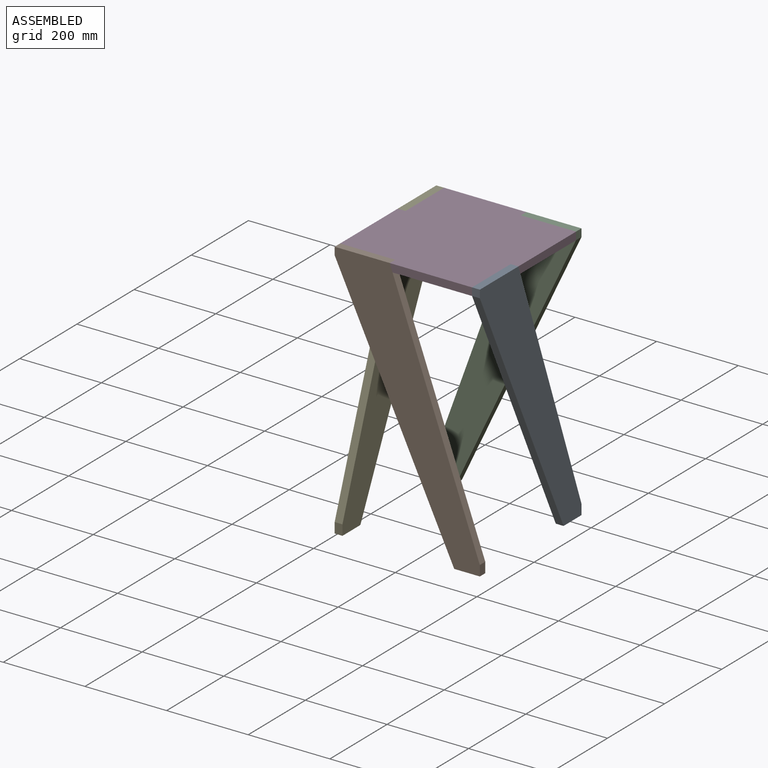
[diagram: assembled view]
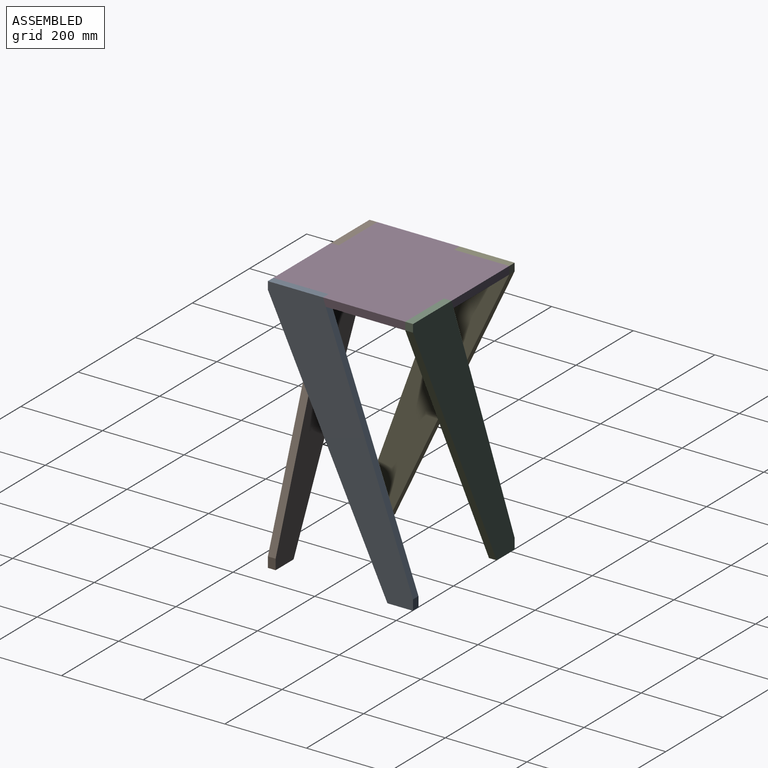
[diagram: assembled view, second angle]
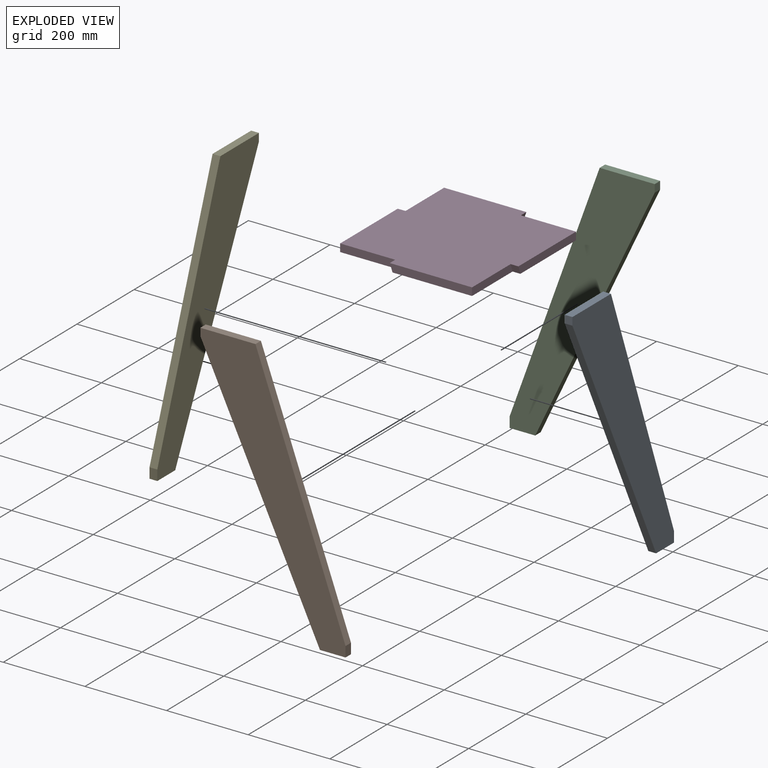
[diagram: exploded view]
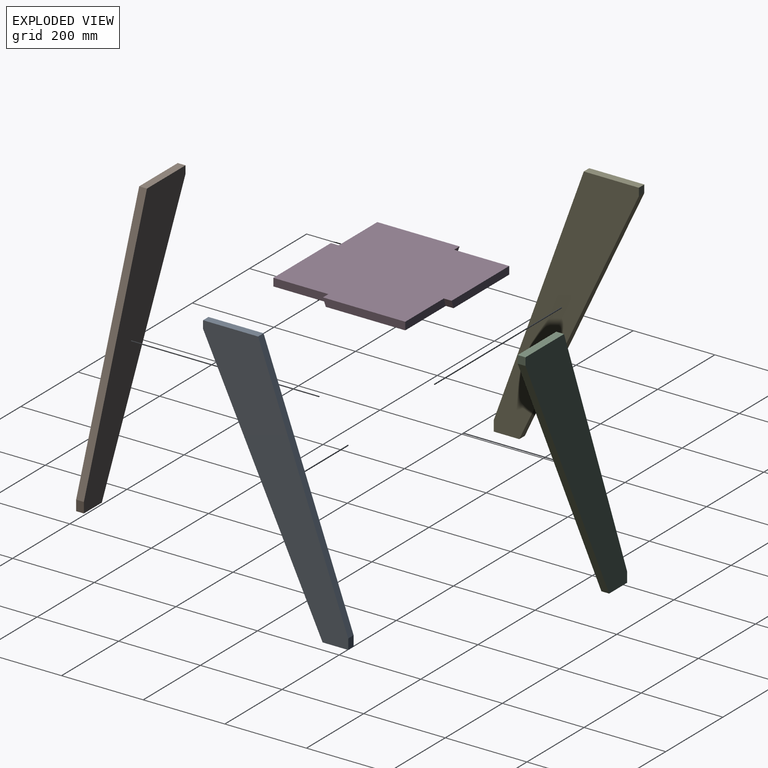
[diagram: exploded view, second angle]
ASSEMBLY  parts=5 mates=4
PART A: 8 faces, bbox 355.6x19.1x635 mm
  f0: plane 134.92x19.05mm, normal (0,0,1), area 2570.3mm2, adj f1,f5,f6,f7
  f1: plane 19.05x19.05mm, normal (-1,0,0), area 362.9mm2, adj f0,f2,f6,f7
  f2: plane 615.95x292.88mm, normal (-0.9,0,-0.43), area 12992.8mm2, adj f1,f3,f6,f7
  f3: plane 62.72x19.05mm, normal (0,0,-1), area 1194.8mm2, adj f2,f4,f6,f7
  f4: plane 25.4x19.05mm, normal (1,0,0), area 483.9mm2, adj f3,f5,f6,f7
  f5: plane 609.6x220.68mm, normal (0.94,0,0.34), area 12350.4mm2, adj f0,f4,f6,f7
  f6: plane 635x355.6mm, normal (0,-1,0), area 68343.8mm2, adj f0,f1,f2,f3,f4,f5
  f7: plane 635x355.6mm, normal (0,1,0), area 68343.8mm2, adj f0,f1,f2,f3,f4,f5
PART B: same geometry as A
PART C: same geometry as A
PART D: 14 faces, bbox 355.6x355.6x19.1 mm
  f0: plane 355.6x355.6mm, normal (0,0,-1), area 115644.8mm2, adj f2,f3,f4,f5,f6,f7,f8,f9
  f1: plane 355.6x355.6mm, normal (0,0,1), area 116170.3mm2, adj f2,f3,f4,f5,f6,f7,f8,f9
  f2: plane 201.63x19.05mm, normal (0,1,0), area 3775.3mm2, adj f0,f1,f10,f13
  f3: plane 201.63x19.05mm, normal (0,-1,0), area 3775.3mm2, adj f0,f1,f6,f9
  f4: plane 201.63x19.05mm, normal (1,0,0), area 3775.3mm2, adj f0,f1,f8,f11
  f5: plane 201.63x19.05mm, normal (-1,0,0), area 3775.3mm2, adj f0,f1,f7,f12
  f6: plane 19.05x19.05mm, normal (-0.94,0,-0.34), area 385.9mm2, adj f0,f1,f3,f7
  f7: plane 141.82x19.05mm, normal (0,-1,0), area 2636mm2, adj f0,f1,f5,f6
  f8: plane 19.05x19.05mm, normal (0,-0.94,-0.34), area 385.9mm2, adj f0,f1,f4,f9
  f9: plane 141.82x19.05mm, normal (1,0,0), area 2636mm2, adj f0,f1,f3,f8
  f10: plane 19.05x19.05mm, normal (0.94,0,-0.34), area 385.9mm2, adj f0,f1,f2,f11
  f11: plane 141.82x19.05mm, normal (0,1,0), area 2636mm2, adj f0,f1,f4,f10
  f12: plane 19.05x19.05mm, normal (0,0.94,-0.34), area 385.9mm2, adj f0,f1,f5,f13
  f13: plane 141.82x19.05mm, normal (-1,0,0), area 2636mm2, adj f0,f1,f2,f12
PART E: same geometry as A
PLACE A rot(axis=(0,0,1),90deg) t=(345.69,184.83,-232.56)mm
PLACE B t=(333.26,-120.24,-232.56)mm
PLACE C rot(axis=(0,0,-1),180deg) t=(40.61,197.26,-232.56)mm
PLACE D t=(244.02,-45.27,48.59)mm
PLACE E rot(axis=(0,0,-1),90deg) t=(28.19,-107.81,-232.56)mm
MATE fastened D.f9 <-> A.f7  axis (1,0,0) through (345.69,-71.83,67.64)mm
MATE fastened D.f7 <-> B.f7  axis (0,-1,0) through (76.6,-120.24,67.64)mm
MATE fastened D.f11 <-> C.f7  axis (0,1,0) through (297.27,197.26,67.64)mm
MATE fastened D.f13 <-> E.f7  axis (-1,0,0) through (28.19,148.84,67.64)mm
